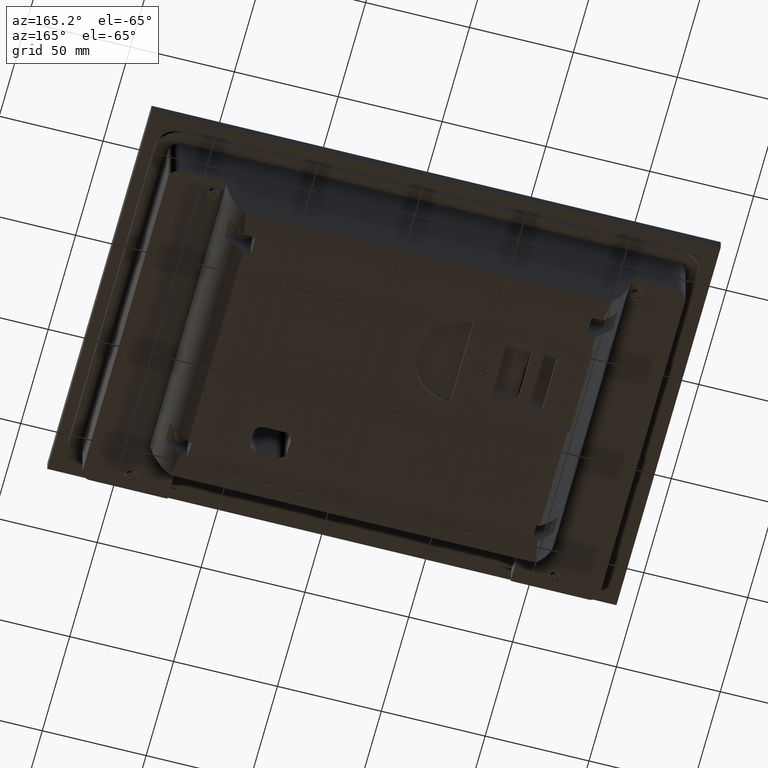
[diagram: clean part render]
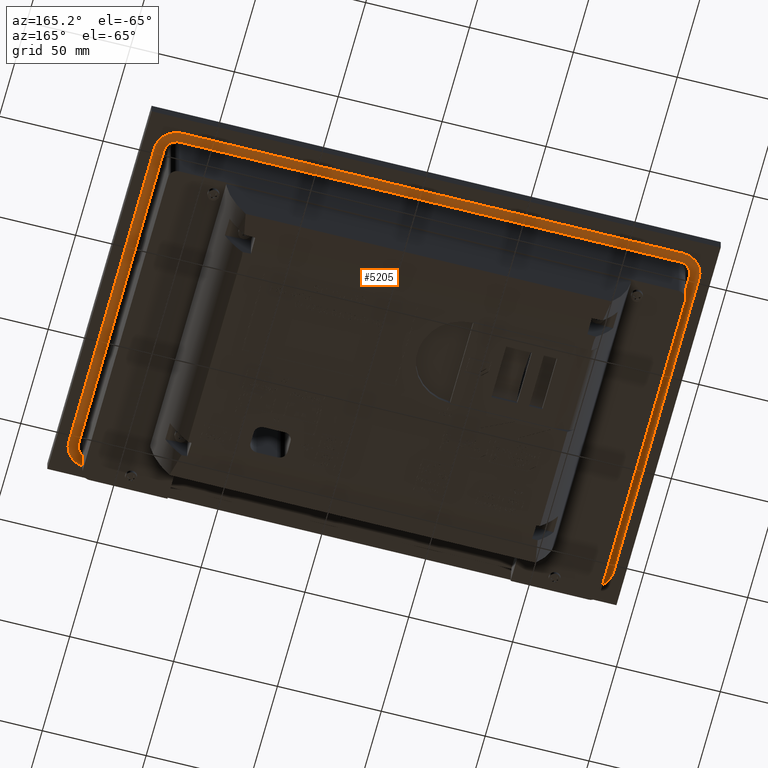
[diagram: same view with one face highlighted and labeled with its STEP entity id]
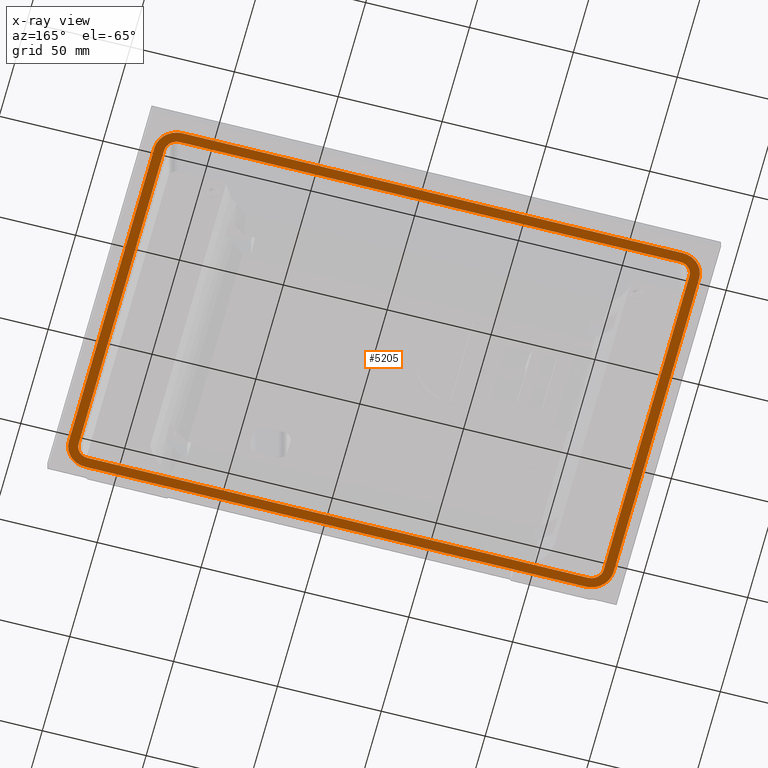
[diagram: x-ray of the same camera — body ghosted, the highlighted face saturated]
A machine part, auxiliary view. The second image highlights one B-rep face of the part: STEP entity #5205.
The next image is the same camera in x-ray: the body ghosted, the highlighted face saturated — about 0% of this face is hidden behind the body in this view.
In plain terms, the highlighted planar face has unit normal (-0, -0, 1).
Its self-contained STEP definition (entity closure, byte-faithful):
#369=FACE_BOUND('',#12893,.T.);
#370=FACE_BOUND('',#12894,.T.);
#1019=CIRCLE('',#51838,6.);
#1021=CIRCLE('',#51842,6.);
#1023=CIRCLE('',#51846,6.);
#1025=CIRCLE('',#51851,10.7);
#1027=CIRCLE('',#51855,10.7);
#1029=CIRCLE('',#51859,10.7);
#1031=CIRCLE('',#51863,10.7);
#1033=CIRCLE('',#51866,6.);
#5205=ADVANCED_FACE('',(#369,#370),#7922,.F.);
#7922=PLANE('',#51868);
#12893=EDGE_LOOP('',(#17054,#17055,#17056,#17057,#17058,#17059,#17060,#17061));
#12894=EDGE_LOOP('',(#17062,#17063,#17064,#17065,#17066,#17067,#17068,#17069));
#17054=ORIENTED_EDGE('',*,*,#34059,.F.);
#17055=ORIENTED_EDGE('',*,*,#34080,.F.);
#17056=ORIENTED_EDGE('',*,*,#34077,.F.);
#17057=ORIENTED_EDGE('',*,*,#34074,.F.);
#17058=ORIENTED_EDGE('',*,*,#34071,.F.);
#17059=ORIENTED_EDGE('',*,*,#34068,.F.);
#17060=ORIENTED_EDGE('',*,*,#34065,.F.);
#17061=ORIENTED_EDGE('',*,*,#34062,.F.);
#17062=ORIENTED_EDGE('',*,*,#34037,.T.);
#17063=ORIENTED_EDGE('',*,*,#34082,.T.);
#17064=ORIENTED_EDGE('',*,*,#34055,.T.);
#17065=ORIENTED_EDGE('',*,*,#34052,.T.);
#17066=ORIENTED_EDGE('',*,*,#34049,.T.);
#17067=ORIENTED_EDGE('',*,*,#34046,.T.);
#17068=ORIENTED_EDGE('',*,*,#34043,.T.);
#17069=ORIENTED_EDGE('',*,*,#34040,.T.);
#29367=VERTEX_POINT('',#67666);
#29368=VERTEX_POINT('',#67668);
#29370=VERTEX_POINT('',#67674);
#29372=VERTEX_POINT('',#67680);
#29374=VERTEX_POINT('',#67686);
#29376=VERTEX_POINT('',#67692);
#29378=VERTEX_POINT('',#67698);
#29380=VERTEX_POINT('',#67704);
#29383=VERTEX_POINT('',#67711);
#29384=VERTEX_POINT('',#67713);
#29386=VERTEX_POINT('',#67719);
#29388=VERTEX_POINT('',#67725);
#29390=VERTEX_POINT('',#67731);
#29392=VERTEX_POINT('',#67737);
#29394=VERTEX_POINT('',#67743);
#29396=VERTEX_POINT('',#67749);
#34037=EDGE_CURVE('',#29368,#29367,#40506,.T.);
#34040=EDGE_CURVE('',#29370,#29368,#1019,.T.);
#34043=EDGE_CURVE('',#29372,#29370,#40510,.T.);
#34046=EDGE_CURVE('',#29374,#29372,#1021,.T.);
#34049=EDGE_CURVE('',#29376,#29374,#40514,.T.);
#34052=EDGE_CURVE('',#29378,#29376,#1023,.T.);
#34055=EDGE_CURVE('',#29380,#29378,#40518,.T.);
#34059=EDGE_CURVE('',#29383,#29384,#40522,.T.);
#34062=EDGE_CURVE('',#29384,#29386,#1025,.T.);
#34065=EDGE_CURVE('',#29386,#29388,#40526,.T.);
#34068=EDGE_CURVE('',#29388,#29390,#1027,.T.);
#34071=EDGE_CURVE('',#29390,#29392,#40530,.T.);
#34074=EDGE_CURVE('',#29392,#29394,#1029,.T.);
#34077=EDGE_CURVE('',#29394,#29396,#40534,.T.);
#34080=EDGE_CURVE('',#29396,#29383,#1031,.T.);
#34082=EDGE_CURVE('',#29367,#29380,#1033,.T.);
#40506=LINE('',#67667,#46078);
#40510=LINE('',#67679,#46082);
#40514=LINE('',#67691,#46086);
#40518=LINE('',#67703,#46090);
#40522=LINE('',#67712,#46094);
#40526=LINE('',#67724,#46098);
#40530=LINE('',#67736,#46102);
#40534=LINE('',#67748,#46106);
#46078=VECTOR('',#55710,1.);
#46082=VECTOR('',#55722,1.);
#46086=VECTOR('',#55734,1.);
#46090=VECTOR('',#55746,1.);
#46094=VECTOR('',#55752,1.);
#46098=VECTOR('',#55764,1.);
#46102=VECTOR('',#55776,1.);
#46106=VECTOR('',#55788,1.);
#51838=AXIS2_PLACEMENT_3D('',#67673,#55716,#55717);
#51842=AXIS2_PLACEMENT_3D('',#67685,#55728,#55729);
#51846=AXIS2_PLACEMENT_3D('',#67697,#55740,#55741);
#51851=AXIS2_PLACEMENT_3D('',#67718,#55758,#55759);
#51855=AXIS2_PLACEMENT_3D('',#67730,#55770,#55771);
#51859=AXIS2_PLACEMENT_3D('',#67742,#55782,#55783);
#51863=AXIS2_PLACEMENT_3D('',#67753,#55794,#55795);
#51866=AXIS2_PLACEMENT_3D('',#67756,#55800,#55801);
#51868=AXIS2_PLACEMENT_3D('',#67758,#55804,#55805);
#55710=DIRECTION('',(1.49329994059173E-005,-0.999657976966521,-0.0261520336533901));
#55716=DIRECTION('',(-0.00114182245019614,-0.0261520336533344,0.999657324975557));
#55717=DIRECTION('',(-0.999999348009037,1.49330969025548E-005,-0.00114182244892111));
#55722=DIRECTION('',(-0.999999348009036,1.49330969037127E-005,-0.00114182244892102));
#55728=DIRECTION('',(-0.00114182245019613,-0.0261520336533344,0.999657324975557));
#55729=DIRECTION('',(-1.49329994064695E-005,0.99965797696652,0.0261520336533902));
#55734=DIRECTION('',(-1.49329994059173E-005,0.999657976966521,0.0261520336533901));
#55740=DIRECTION('',(-0.00114182245019613,-0.0261520336533345,0.999657324975557));
#55741=DIRECTION('',(0.999999348009037,-1.49330969048678E-005,0.00114182244892111));
#55746=DIRECTION('',(0.999999348009036,-1.49330969038279E-005,0.00114182244892104));
#55752=DIRECTION('',(1.49329994059173E-005,-0.999657976966521,-0.0261520336533901));
#55758=DIRECTION('',(-0.00114182245019613,-0.0261520336533344,0.999657324975557));
#55759=DIRECTION('',(1.49329994060804E-005,-0.999657976966521,-0.0261520336533902));
#55764=DIRECTION('',(0.999999348009036,-1.49330969037703E-005,0.00114182244892104));
#55770=DIRECTION('',(-0.00114182245019613,-0.0261520336533345,0.999657324975557));
#55771=DIRECTION('',(0.999999348009035,-1.49330969033762E-005,0.00114182244892104));
#55776=DIRECTION('',(-1.49329994057391E-005,0.999657976966521,0.0261520336533901));
#55782=DIRECTION('',(-0.00114182245019613,-0.0261520336533344,0.999657324975557));
#55783=DIRECTION('',(-1.49329994060804E-005,0.999657976966521,0.0261520336533901));
#55788=DIRECTION('',(-0.999999348009036,1.49330969037703E-005,-0.00114182244892103));
#55794=DIRECTION('',(-0.00114182245019614,-0.0261520336533344,0.999657324975557));
#55795=DIRECTION('',(-0.999999348009036,1.49330969033762E-005,-0.00114182244892104));
#55800=DIRECTION('',(-0.00114182245019613,-0.0261520336533344,0.999657324975557));
#55801=DIRECTION('',(1.49329994064695E-005,-0.99965797696652,-0.02615203365339));
#55804=DIRECTION('',(-0.00114182245019613,-0.0261520336533344,0.999657324975557));
#55805=DIRECTION('',(0.,-0.999657976632066,-0.0261520507013193));
#67666=CARTESIAN_POINT('',(-127.023826157022,-91.0427795819588,-12.2057738021828));
#67667=CARTESIAN_POINT('',(-127.026152718329,64.7039332294252,-8.1312869589846));
#67668=CARTESIAN_POINT('',(-127.026152718329,64.7039332294252,-8.1312869589846));
#67673=CARTESIAN_POINT('',(-121.026156630275,64.7038436308439,-8.12443602429107));
#67674=CARTESIAN_POINT('',(-121.026246228271,70.7017914926429,-7.96752382237074));
#67679=CARTESIAN_POINT('',(119.873596707106,70.6981941095988,-7.69245879442566));
#67680=CARTESIAN_POINT('',(119.873596707106,70.6981941095989,-7.69245879442566));
#67685=CARTESIAN_POINT('',(119.873686305103,64.7002462477998,-7.849370996346));
#67686=CARTESIAN_POINT('',(125.873682393156,64.7001566492182,-7.84252006165247));
#67691=CARTESIAN_POINT('',(125.876008954464,-91.0465561621658,-11.9170069048507));
#67692=CARTESIAN_POINT('',(125.876008954464,-91.0465561621668,-11.9170069048507));
#67697=CARTESIAN_POINT('',(119.87601286641,-91.0464665635854,-11.9238578395442));
#67698=CARTESIAN_POINT('',(119.876102464406,-97.0444144253835,-12.0807700414645));
#67703=CARTESIAN_POINT('',(-121.023740470972,-97.0408170423394,-12.3558350694096));
#67704=CARTESIAN_POINT('',(-121.023740470972,-97.04081704234,-12.3558350694096));
#67711=CARTESIAN_POINT('',(-131.726149653972,64.7040034149806,-8.13665352449453));
#67712=CARTESIAN_POINT('',(-131.726149653972,64.7040034149806,-8.13665352449453));
#67713=CARTESIAN_POINT('',(-131.723823092664,-91.0427093964033,-12.2111403676927));
#67718=CARTESIAN_POINT('',(-121.023830068968,-91.042869180541,-12.1989228674893));
#67719=CARTESIAN_POINT('',(-121.023670285874,-101.739209534083,-12.4787496275806));
#67724=CARTESIAN_POINT('',(-121.023670285874,-101.739209534082,-12.4787496275805));
#67725=CARTESIAN_POINT('',(119.876172649503,-101.742806917126,-12.2036845996355));
#67730=CARTESIAN_POINT('',(119.87601286641,-91.0464665635855,-11.9238578395442));
#67731=CARTESIAN_POINT('',(130.576005890106,-91.0466263477223,-11.9116403393408));
#67736=CARTESIAN_POINT('',(130.576005890106,-91.0466263477212,-11.9116403393407));
#67737=CARTESIAN_POINT('',(130.573679328799,64.7000864636627,-7.83715349614254));
#67742=CARTESIAN_POINT('',(119.873686305102,64.7002462477998,-7.849370996346));
#67743=CARTESIAN_POINT('',(119.873526522009,75.3965866013415,-7.56954423625472));
#67748=CARTESIAN_POINT('',(119.873526522008,75.3965866013414,-7.56954423625472));
#67749=CARTESIAN_POINT('',(-121.026316413368,75.4001839843855,-7.8446092641998));
#67753=CARTESIAN_POINT('',(-121.026156630275,64.703843630844,-8.12443602429108));
#67756=CARTESIAN_POINT('',(-121.023830068968,-91.0428691805409,-12.1989228674893));
#67758=CARTESIAN_POINT('',(-121.023830068968,-91.042869180541,-12.1989228674893));